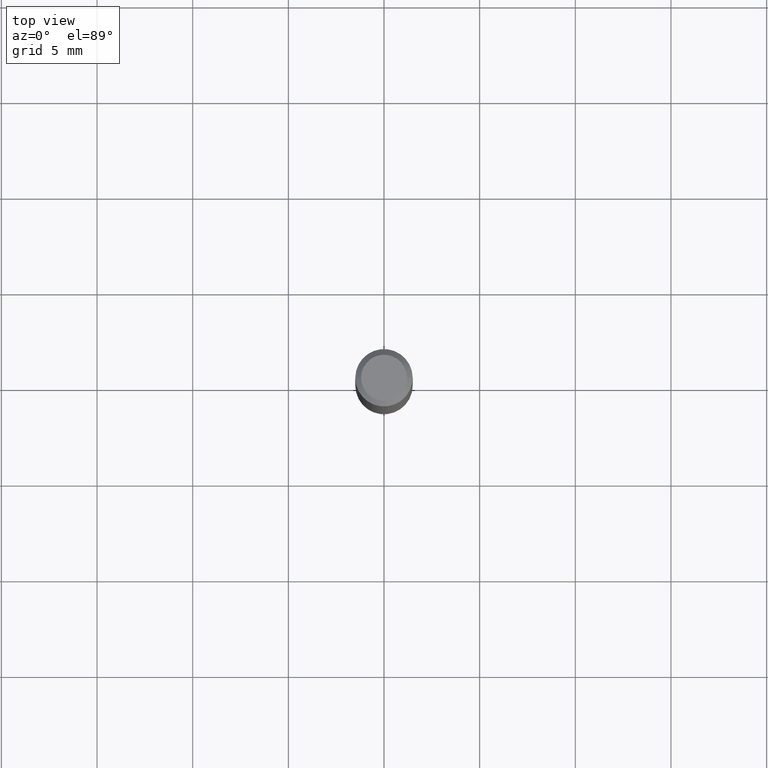
[diagram: clean part render]
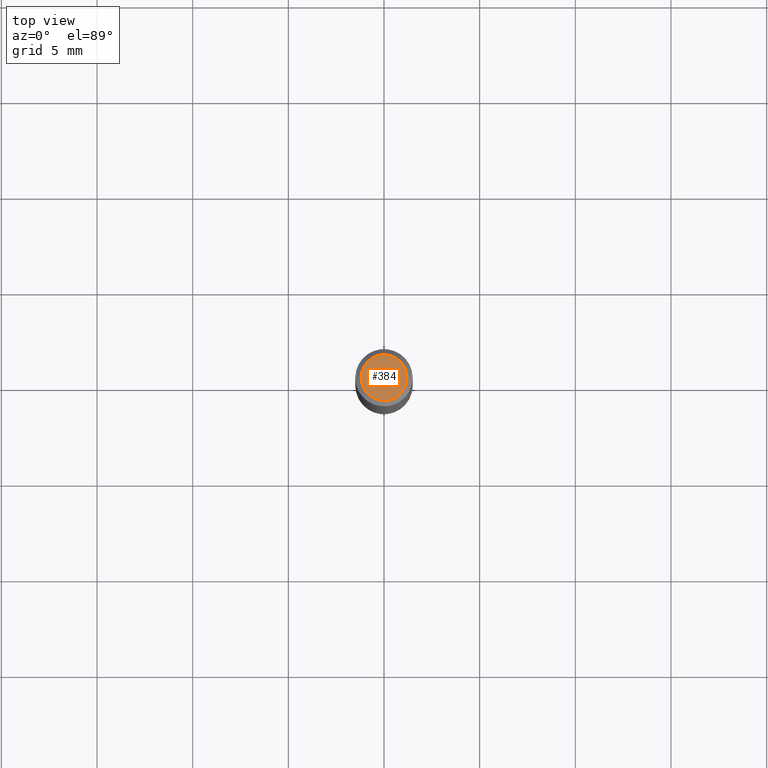
[diagram: same view with one face highlighted and labeled with its STEP entity id]
A machine part, top view. The second image highlights one B-rep face of the part: STEP entity #384.
In plain terms, the highlighted planar face has unit normal (0, -0, -1).
Its self-contained STEP definition (entity closure, byte-faithful):
#5 = EDGE_CURVE ( 'NONE', #351, #132, #253, .T. ) ;
#8 = CARTESIAN_POINT ( 'NONE',  ( -0.04724000000000000421, 3.504923541997677355E-16, -3.380025165670481712E-19 ) ) ;
#21 = ORIENTED_EDGE ( 'NONE', *, *, #56, .T. ) ;
#56 = EDGE_CURVE ( 'NONE', #132, #351, #163, .T. ) ;
#100 = CARTESIAN_POINT ( 'NONE',  ( 8.265746106709734507E-48, -1.180129479067563789E-33, -3.380025165646692144E-19 ) ) ;
#116 = AXIS2_PLACEMENT_3D ( 'NONE', #230, #426, #462 ) ;
#132 = VERTEX_POINT ( 'NONE', #8 ) ;
#163 = CIRCLE ( 'NONE', #227, 0.04724000000000000421 ) ;
#165 = DIRECTION ( 'NONE',  ( -2.445468806185136597E-29, 3.491481338843145583E-15, 1.000000000000000000 ) ) ;
#186 = CARTESIAN_POINT ( 'NONE',  ( 8.265746106709734507E-48, -1.180129479067563789E-33, -3.380025165646692144E-19 ) ) ;
#212 = EDGE_LOOP ( 'NONE', ( #21, #396 ) ) ;
#227 = AXIS2_PLACEMENT_3D ( 'NONE', #186, #307, #435 ) ;
#230 = CARTESIAN_POINT ( 'NONE',  ( 4.132873053354867254E-48, -5.900647395337818946E-34, -1.690012582823346072E-19 ) ) ;
#243 = DIRECTION ( 'NONE',  ( 1.000000000000000000, -6.982962677686266711E-15, 4.876185090822587894E-29 ) ) ;
#253 = CIRCLE ( 'NONE', #261, 0.04724000000000000421 ) ;
#254 = CARTESIAN_POINT ( 'NONE',  ( 0.04724000000000000421, -3.852183633974369345E-16, -3.380025165621689721E-19 ) ) ;
#261 = AXIS2_PLACEMENT_3D ( 'NONE', #100, #165, #243 ) ;
#268 = FACE_OUTER_BOUND ( 'NONE', #212, .T. ) ;
#307 = DIRECTION ( 'NONE',  ( -2.445468806185136597E-29, 3.491481338843145583E-15, 1.000000000000000000 ) ) ;
#351 = VERTEX_POINT ( 'NONE', #254 ) ;
#381 = PLANE ( 'NONE',  #116 ) ;
#384 = ADVANCED_FACE ( 'NONE', ( #268 ), #381, .F. ) ;
#396 = ORIENTED_EDGE ( 'NONE', *, *, #5, .T. ) ;
#426 = DIRECTION ( 'NONE',  ( 2.438088387897960049E-29, -3.491481338843145188E-15, -1.000000000000000000 ) ) ;
#435 = DIRECTION ( 'NONE',  ( 1.000000000000000000, -6.982962677686266711E-15, 4.876185090822587894E-29 ) ) ;
#462 = DIRECTION ( 'NONE',  ( -1.000000000000000000, 6.982962677686265922E-15, -4.876176775795935793E-29 ) ) ;